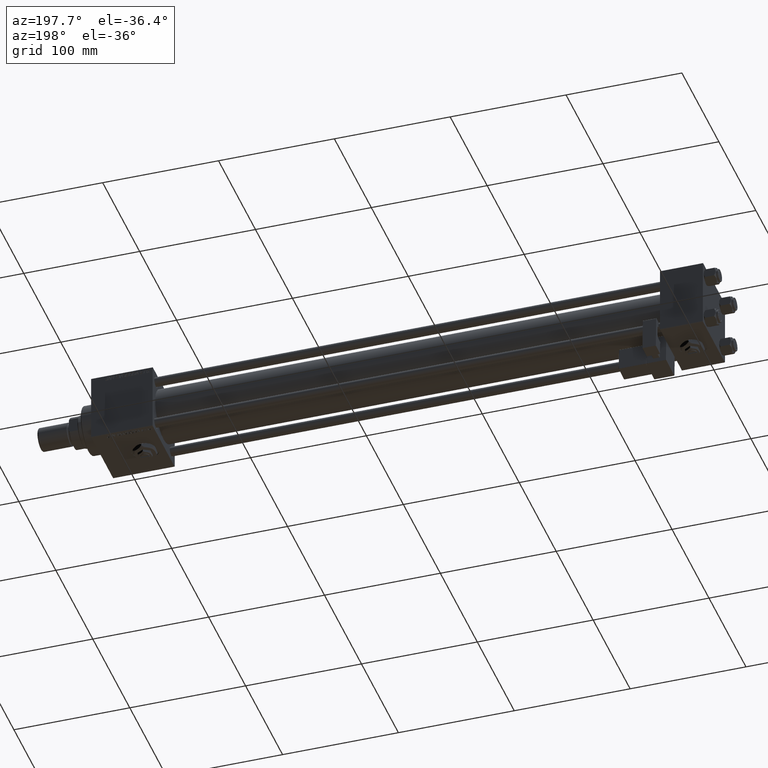
[diagram: clean part render]
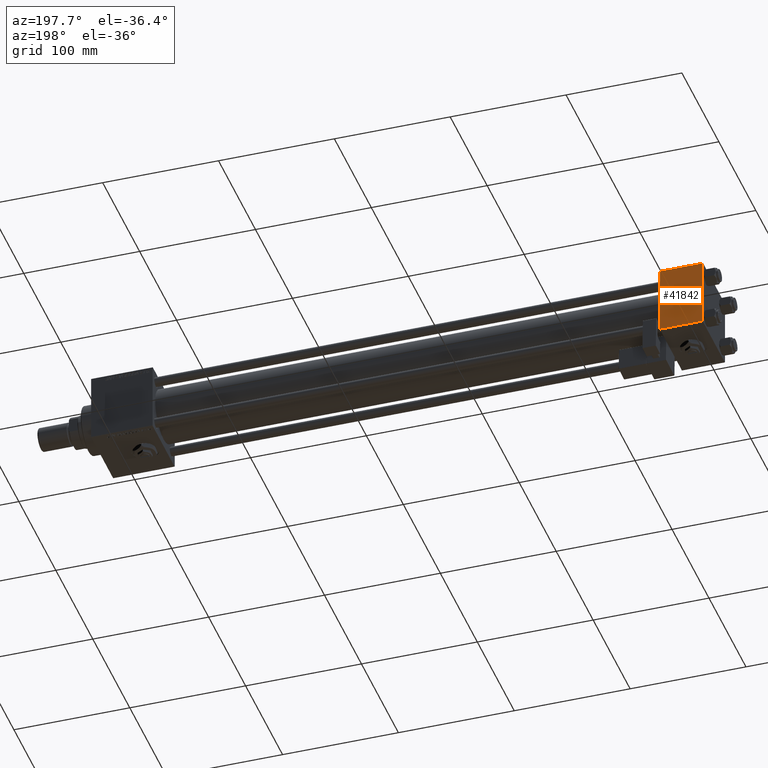
[diagram: same view with one face highlighted and labeled with its STEP entity id]
A machine part, auxiliary view. The second image highlights one B-rep face of the part: STEP entity #41842.
In plain terms, the highlighted planar face has unit normal (0, 1, 0).
Its self-contained STEP definition (entity closure, byte-faithful):
#767 = ORIENTED_EDGE ( 'NONE', *, *, #15300, .F. ) ;
#5906 = CARTESIAN_POINT ( 'NONE',  ( 37.00000000000000000, 29.99999999999999289, 30.00000000000000000 ) ) ;
#8286 = EDGE_CURVE ( 'NONE', #19490, #32962, #12861, .T. ) ;
#9246 = LINE ( 'NONE', #5906, #47508 ) ;
#11812 = CARTESIAN_POINT ( 'NONE',  ( 0.000000000000000000, 29.99999999999999289, -29.50000000000000000 ) ) ;
#12588 = CARTESIAN_POINT ( 'NONE',  ( 37.00000000000000000, 29.99999999999999289, 29.50000000000000000 ) ) ;
#12861 = LINE ( 'NONE', #12588, #26488 ) ;
#12983 = VERTEX_POINT ( 'NONE', #11812 ) ;
#13132 = DIRECTION ( 'NONE',  ( 0.000000000000000000, 0.000000000000000000, -1.000000000000000000 ) ) ;
#15300 = EDGE_CURVE ( 'NONE', #19490, #12983, #28763, .T. ) ;
#16763 = VERTEX_POINT ( 'NONE', #30482 ) ;
#18202 = PLANE ( 'NONE',  #35128 ) ;
#19490 = VERTEX_POINT ( 'NONE', #36120 ) ;
#19870 = DIRECTION ( 'NONE',  ( 0.000000000000000000, 0.000000000000000000, -1.000000000000000000 ) ) ;
#20549 = LINE ( 'NONE', #46641, #50062 ) ;
#22099 = DIRECTION ( 'NONE',  ( 0.000000000000000000, -0.000000000000000000, 1.000000000000000000 ) ) ;
#26488 = VECTOR ( 'NONE', #29538, 1000.000000000000000 ) ;
#28763 = LINE ( 'NONE', #29295, #49489 ) ;
#29295 = CARTESIAN_POINT ( 'NONE',  ( 0.000000000000000000, 29.99999999999999289, 30.00000000000000000 ) ) ;
#29538 = DIRECTION ( 'NONE',  ( 1.000000000000000000, 0.000000000000000000, 0.000000000000000000 ) ) ;
#30482 = CARTESIAN_POINT ( 'NONE',  ( 37.00000000000000000, 29.99999999999999289, -29.50000000000000000 ) ) ;
#30837 = ORIENTED_EDGE ( 'NONE', *, *, #38680, .T. ) ;
#31656 = ORIENTED_EDGE ( 'NONE', *, *, #41235, .T. ) ;
#32962 = VERTEX_POINT ( 'NONE', #41422 ) ;
#33872 = DIRECTION ( 'NONE',  ( -0.000000000000000000, 1.000000000000000000, 0.000000000000000000 ) ) ;
#35128 = AXIS2_PLACEMENT_3D ( 'NONE', #44046, #33872, #22099 ) ;
#36120 = CARTESIAN_POINT ( 'NONE',  ( 0.000000000000000000, 29.99999999999999289, 29.50000000000000000 ) ) ;
#37505 = DIRECTION ( 'NONE',  ( -1.000000000000000000, 0.000000000000000000, 0.000000000000000000 ) ) ;
#38680 = EDGE_CURVE ( 'NONE', #16763, #12983, #20549, .T. ) ;
#41235 = EDGE_CURVE ( 'NONE', #32962, #16763, #9246, .T. ) ;
#41422 = CARTESIAN_POINT ( 'NONE',  ( 37.00000000000000000, 29.99999999999999289, 29.50000000000000000 ) ) ;
#41842 = ADVANCED_FACE ( 'NONE', ( #47375 ), #18202, .T. ) ;
#44046 = CARTESIAN_POINT ( 'NONE',  ( 37.00000000000000000, 29.99999999999999289, 30.00000000000000000 ) ) ;
#46641 = CARTESIAN_POINT ( 'NONE',  ( 37.00000000000000000, 29.99999999999999289, -29.50000000000000000 ) ) ;
#47375 = FACE_OUTER_BOUND ( 'NONE', #52041, .T. ) ;
#47508 = VECTOR ( 'NONE', #13132, 1000.000000000000000 ) ;
#49489 = VECTOR ( 'NONE', #19870, 1000.000000000000000 ) ;
#50062 = VECTOR ( 'NONE', #37505, 1000.000000000000000 ) ;
#51066 = ORIENTED_EDGE ( 'NONE', *, *, #8286, .T. ) ;
#52041 = EDGE_LOOP ( 'NONE', ( #31656, #30837, #767, #51066 ) ) ;